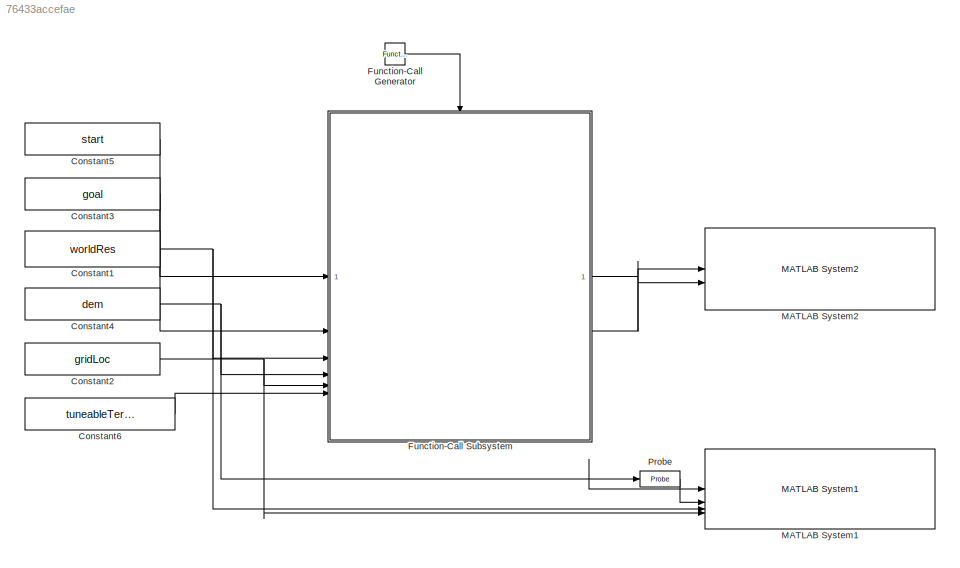
MODEL slx_76433accefae
KIND model
CONFIG AbsTol = auto
CONFIG EnableMultiTasking = off
CONFIG FixedStep = auto
CONFIG InitFcn = % Make sure server is running\nsvrMdlName = 'globalPlanServer';\nload_system(svrMdlName);\nset_param(svrMdlName,'SimulationCommand','Start');\npause(1);
CONFIG MaxStep = auto
CONFIG MinStep = auto
CONFIG RelTol = 1e-3
CONFIG SampleTimeConstraint = Unconstrained
CONFIG SolverName = VariableStepAuto
CONFIG StartTime = 0.0
CONFIG StopFcn = % Make sure server is running\nsvrMdlName = 'globalPlanServer';\nload_system(svrMdlName);\nset_param(svrMdlName,'SimulationCommand','Stop');
CONFIG StopTime = 10.0
BLOCK [Constant] Constant1
  Value = worldRes
BLOCK [Constant] Constant2
  Value = gridLoc
BLOCK [Constant] Constant3
  Value = goal
BLOCK [Constant] Constant4
  Value = dem
BLOCK [Constant] Constant5
  Value = start
BLOCK [Constant] Constant6
  OutDataTypeStr = Bus: fsp_tunable_bus
  Value = tuneableTerrainAwareParams
BLOCK [Reference] Function-Call Generator  REF=simulink/Ports &
Subsystems/Function-Call
Generator
  SourceBlock = simulink/Ports &\nSubsystems/Function-Call\nGenerator
  SourceType = Function-Call Generator
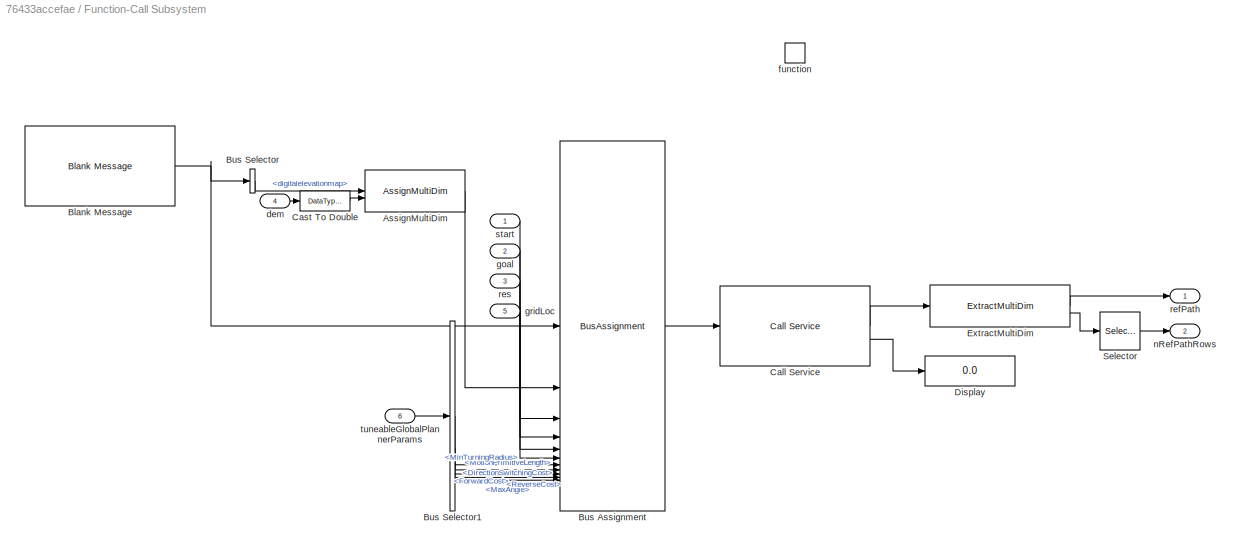
BLOCK [SubSystem] Function-Call Subsystem
  TreatAsAtomicUnit = on
BLOCK [Reference] Function-Call Subsystem/AssignMultiDim  REF=roshelperlib/AssignMultiDim  (lib defined in slx_3328ea0e13a5)
  SourceBlock = roshelperlib/AssignMultiDim
  SourceType = SubSystem
BLOCK [Reference] Function-Call Subsystem/Blank Message  REF=ros2lib/Blank Message  (lib defined in slx_3c1549211f48)
  SourceBlock = ros2lib/Blank Message
  SourceType = ROS2 Blank Message
BLOCK [BusAssignment] Function-Call Subsystem/Bus Assignment
  AssignedSignals = digitalelevationmap,start,goal,resolution,gridloc,tuneableterrainawareparams.minturningradius,tuneableterrainawareparams.motionprimitivelength,tuneableterrainawareparams.forwardcost,tuneableterrainawareparams.reversecost,tuneableterrainawareparams.directionswitchingcost,tuneableterrainawareparams.maxangle
BLOCK [BusSelector] Function-Call Subsystem/Bus Selector
  OutputSignals = digitalelevationmap
BLOCK [BusSelector] Function-Call Subsystem/Bus Selector1
  OutputSignals = MinTurningRadius,MotionPrimitiveLength,ForwardCost,ReverseCost,DirectionSwitchingCost,MaxAngle
BLOCK [Reference] Function-Call Subsystem/Call Service  REF=ros2lib/Call Service  (lib defined in slx_3c1549211f48)
  SourceBlock = ros2lib/Call Service
  SourceType = ROS2 Call Service
BLOCK [DataTypeConversion] Function-Call Subsystem/Cast To Double
  OutDataTypeStr = double
  RndMeth = Floor
  SaturateOnIntegerOverflow = off
BLOCK [Display] Function-Call Subsystem/Display
  Decimation = 1
BLOCK [Reference] Function-Call Subsystem/ExtractMultiDim  REF=roshelperlib/ExtractMultiDim  (lib defined in slx_3328ea0e13a5)
  SourceBlock = roshelperlib/ExtractMultiDim
BLOCK [Selector] Function-Call Subsystem/Selector
  IndexOptions = Index vector (dialog)
  Indices = 1
  InputPortWidth = 2
  OutputSizes = 1
BLOCK [Inport] Function-Call Subsystem/dem
  Port = 4
BLOCK [TriggerPort] Function-Call Subsystem/function
  StatesWhenEnabling = held
  TriggerType = function-call
  VariantControl = (inherit)
BLOCK [Inport] Function-Call Subsystem/goal
  Port = 2
BLOCK [Inport] Function-Call Subsystem/gridLoc
  Port = 5
BLOCK [Outport] Function-Call Subsystem/nRefPathRows
  Port = 2
BLOCK [Outport] Function-Call Subsystem/refPath
BLOCK [Inport] Function-Call Subsystem/res
  Port = 3
BLOCK [Inport] Function-Call Subsystem/start
BLOCK [Inport] Function-Call Subsystem/tuneableGlobalPlannerParams
  OutDataTypeStr = Bus: fsp_tunable_bus
  Port = 6
BLOCK [Reference] MATLAB System1  REF=roshelperlib/MATLAB System1  (lib defined in slx_3328ea0e13a5)
  SourceBlock = roshelperlib/MATLAB System1
  SourceType = exampleHelperMapVisualizerSys
BLOCK [Reference] MATLAB System2  REF=roshelperlib/MATLAB System2  (lib defined in slx_3328ea0e13a5)
  SourceBlock = roshelperlib/MATLAB System2
  SourceType = exampleHelperPathVisualizerSys
BLOCK [Probe] Probe
  ProbeComplexSignal = off
  ProbeSampleTime = off
  ProbeSignalDimensions = on
  ProbeWidth = off
NET Constant1:1 -> Function-Call Subsystem:3, MATLAB System1:3
NET Constant2:1 -> Function-Call Subsystem:5, MATLAB System1:4
LINE Constant3:1 -> Function-Call Subsystem:2
NET Constant4:1 -> Function-Call Subsystem:4, MATLAB System1:1, Probe:1
LINE Constant5:1 -> Function-Call Subsystem:1
LINE Constant6:1 -> Function-Call Subsystem:6
LINE Function-Call Generator:1 -> Function-Call Subsystem:trigger
LINE Function-Call Subsystem/AssignMultiDim:1 -> Function-Call Subsystem/Bus Assignment:2
NET Function-Call Subsystem/Blank Message:1 -> Function-Call Subsystem/Bus Assignment:1, Function-Call Subsystem/Bus Selector:1
LINE Function-Call Subsystem/Bus Assignment:1 -> Function-Call Subsystem/Call Service:1
LINE Function-Call Subsystem/Bus Selector1:1 -> Function-Call Subsystem/Bus Assignment:7
LINE Function-Call Subsystem/Bus Selector1:2 -> Function-Call Subsystem/Bus Assignment:8
LINE Function-Call Subsystem/Bus Selector1:3 -> Function-Call Subsystem/Bus Assignment:9
LINE Function-Call Subsystem/Bus Selector1:4 -> Function-Call Subsystem/Bus Assignment:10
LINE Function-Call Subsystem/Bus Selector1:5 -> Function-Call Subsystem/Bus Assignment:11
LINE Function-Call Subsystem/Bus Selector1:6 -> Function-Call Subsystem/Bus Assignment:12
LINE Function-Call Subsystem/Bus Selector:1 -> Function-Call Subsystem/AssignMultiDim:1
LINE Function-Call Subsystem/Call Service:1 -> Function-Call Subsystem/ExtractMultiDim:1
LINE Function-Call Subsystem/Call Service:2 -> Function-Call Subsystem/Display:1
LINE Function-Call Subsystem/Cast To Double:1 -> Function-Call Subsystem/AssignMultiDim:2
LINE Function-Call Subsystem/ExtractMultiDim:1 -> Function-Call Subsystem/refPath:1
LINE Function-Call Subsystem/ExtractMultiDim:2 -> Function-Call Subsystem/Selector:1
LINE Function-Call Subsystem/Selector:1 -> Function-Call Subsystem/nRefPathRows:1
LINE Function-Call Subsystem/dem:1 -> Function-Call Subsystem/Cast To Double:1
LINE Function-Call Subsystem/goal:1 -> Function-Call Subsystem/Bus Assignment:4
LINE Function-Call Subsystem/gridLoc:1 -> Function-Call Subsystem/Bus Assignment:6
LINE Function-Call Subsystem/res:1 -> Function-Call Subsystem/Bus Assignment:5
LINE Function-Call Subsystem/start:1 -> Function-Call Subsystem/Bus Assignment:3
LINE Function-Call Subsystem/tuneableGlobalPlannerParams:1 -> Function-Call Subsystem/Bus Selector1:1
LINE Function-Call Subsystem:1 -> MATLAB System2:1
LINE Function-Call Subsystem:2 -> MATLAB System2:2
LINE Probe:1 -> MATLAB System1:2
note: NET lines group one-source signal fan-out (src -> all destinations, sorted); 1:1 wires keep LINE
